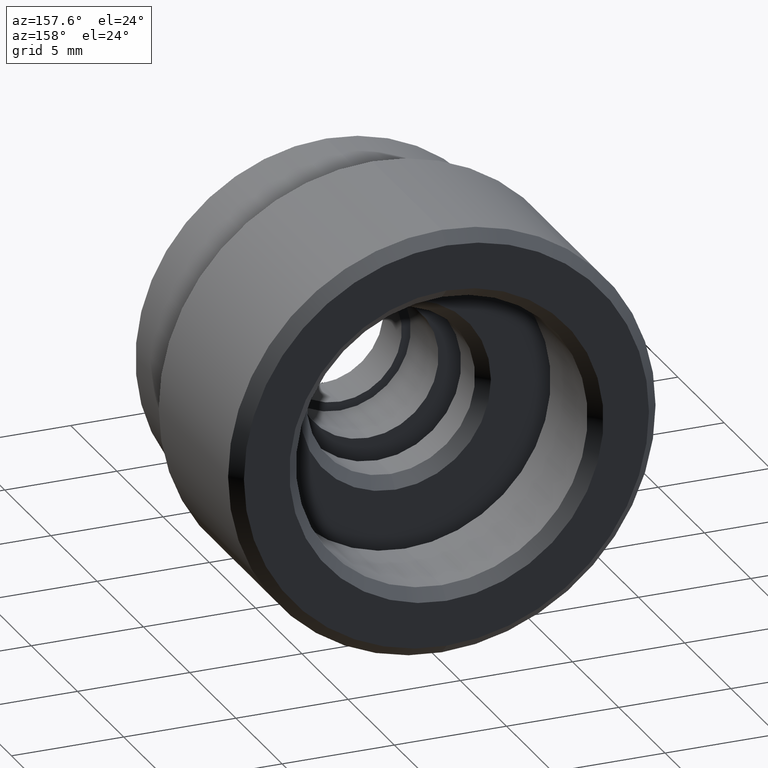
[diagram: clean part render]
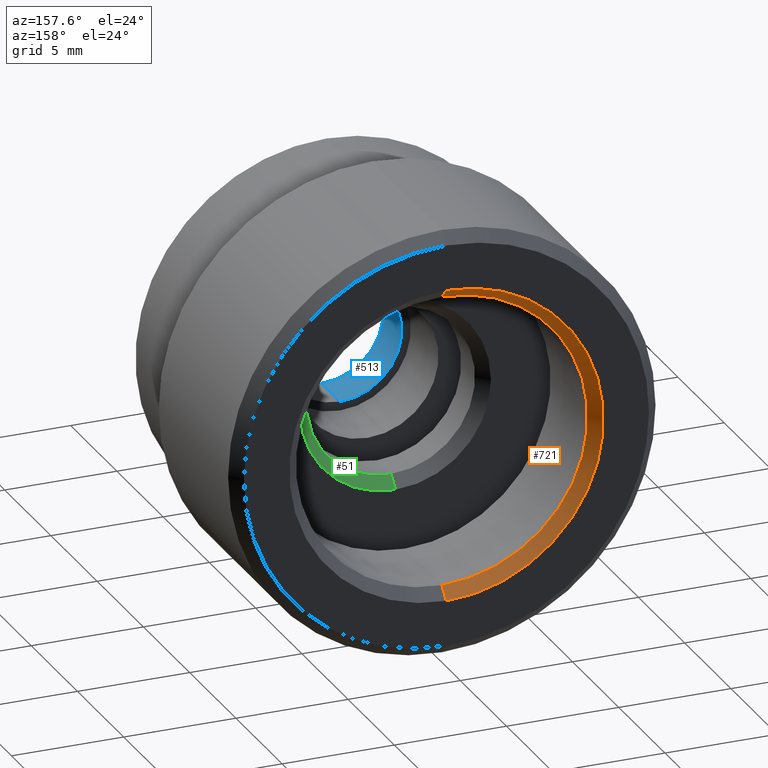
[diagram: same view with three faces highlighted in distinct colors, each labeled with its STEP entity id]
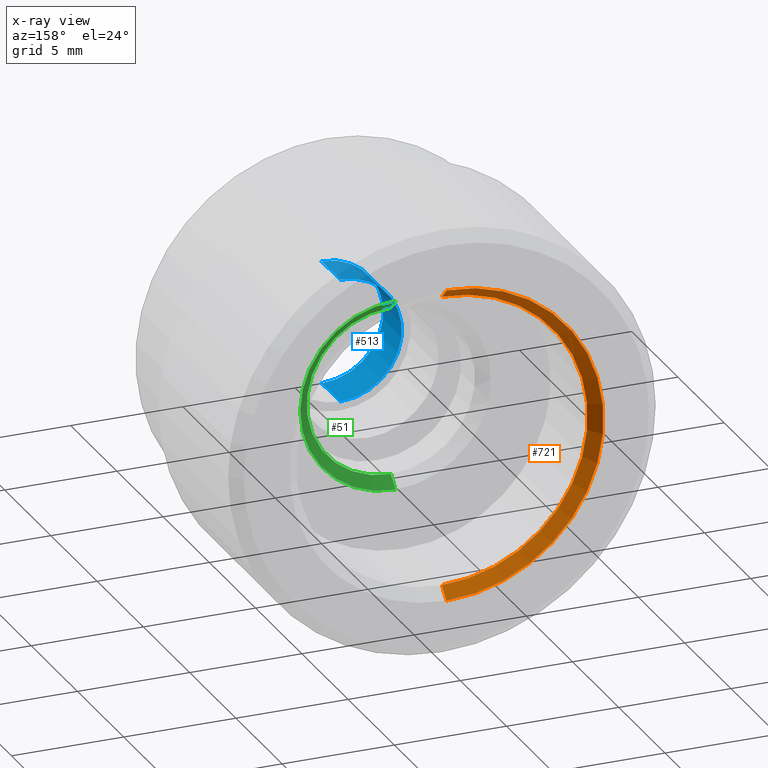
[diagram: x-ray of the same camera — body ghosted, the three highlighted faces saturated]
A machine part, auxiliary view with three faces highlighted in distinct colors.
The next image is the same camera in x-ray (body ghosted, the three faces saturated) — at least one of them is partly hidden behind the body in this view.
Their STEP definitions:

[orange] entity #721 — the highlighted conical surface has half-angle 45 deg.
#17 = ORIENTED_EDGE ( 'NONE', *, *, #1092, .F. ) ;
#66 = CONICAL_SURFACE ( 'NONE', #284, 6.999999999999997300, 0.7853981633974439500 ) ;
#74 = EDGE_CURVE ( 'NONE', #341, #809, #636, .T. ) ;
#91 = DIRECTION ( 'NONE',  ( 0.0000000000000000000, 0.7071067811865505700, 0.7071067811865444600 ) ) ;
#108 = EDGE_CURVE ( 'NONE', #1040, #809, #465, .T. ) ;
#148 = CARTESIAN_POINT ( 'NONE',  ( 0.0000000000000000000, 12.99999999999999800, -6.500000000000000000 ) ) ;
#161 = CARTESIAN_POINT ( 'NONE',  ( 8.572527594031470200E-016, 13.50000000000000000, -6.999999999999997300 ) ) ;
#183 = CARTESIAN_POINT ( 'NONE',  ( 8.572527594031470200E-016, 13.50000000000000000, -6.999999999999997300 ) ) ;
#214 = CARTESIAN_POINT ( 'NONE',  ( 0.0000000000000000000, 13.50000000000000000, 0.0000000000000000000 ) ) ;
#221 = DIRECTION ( 'NONE',  ( -0.0000000000000000000, -1.000000000000000000, -0.0000000000000000000 ) ) ;
#277 = DIRECTION ( 'NONE',  ( 0.0000000000000000000, 0.0000000000000000000, 1.000000000000000000 ) ) ;
#284 = AXIS2_PLACEMENT_3D ( 'NONE', #827, #387, #898 ) ;
#290 = DIRECTION ( 'NONE',  ( -0.0000000000000000000, 1.000000000000000000, -0.0000000000000000000 ) ) ;
#316 = DIRECTION ( 'NONE',  ( 8.659560562354895900E-017, 0.7071067811865505700, -0.7071067811865444600 ) ) ;
#341 = VERTEX_POINT ( 'NONE', #670 ) ;
#348 = VECTOR ( 'NONE', #91, 1000.000000000000000 ) ;
#354 = AXIS2_PLACEMENT_3D ( 'NONE', #214, #221, #277 ) ;
#356 = ORIENTED_EDGE ( 'NONE', *, *, #74, .F. ) ;
#362 = CARTESIAN_POINT ( 'NONE',  ( 0.0000000000000000000, 12.99999999999999800, 0.0000000000000000000 ) ) ;
#371 = ORIENTED_EDGE ( 'NONE', *, *, #108, .T. ) ;
#387 = DIRECTION ( 'NONE',  ( -0.0000000000000000000, 1.000000000000000000, -0.0000000000000000000 ) ) ;
#436 = EDGE_LOOP ( 'NONE', ( #646, #371, #356, #17 ) ) ;
#440 = LINE ( 'NONE', #686, #348 ) ;
#465 = LINE ( 'NONE', #183, #931 ) ;
#621 = VERTEX_POINT ( 'NONE', #1019 ) ;
#636 = CIRCLE ( 'NONE', #354, 6.999999999999997300 ) ;
#646 = ORIENTED_EDGE ( 'NONE', *, *, #814, .F. ) ;
#670 = CARTESIAN_POINT ( 'NONE',  ( 0.0000000000000000000, 13.50000000000000000, 6.999999999999997300 ) ) ;
#686 = CARTESIAN_POINT ( 'NONE',  ( 0.0000000000000000000, 13.50000000000000000, 6.999999999999997300 ) ) ;
#721 = ADVANCED_FACE ( 'NONE', ( #1065 ), #66, .F. ) ;
#809 = VERTEX_POINT ( 'NONE', #161 ) ;
#814 = EDGE_CURVE ( 'NONE', #1040, #621, #909, .T. ) ;
#827 = CARTESIAN_POINT ( 'NONE',  ( 0.0000000000000000000, 13.50000000000000000, 0.0000000000000000000 ) ) ;
#863 = DIRECTION ( 'NONE',  ( 0.0000000000000000000, 0.0000000000000000000, 1.000000000000000000 ) ) ;
#892 = AXIS2_PLACEMENT_3D ( 'NONE', #362, #290, #863 ) ;
#898 = DIRECTION ( 'NONE',  ( 0.0000000000000000000, 0.0000000000000000000, 1.000000000000000000 ) ) ;
#909 = CIRCLE ( 'NONE', #892, 6.500000000000000000 ) ;
#931 = VECTOR ( 'NONE', #316, 1000.000000000000000 ) ;
#1019 = CARTESIAN_POINT ( 'NONE',  ( 7.960204194457795500E-016, 12.99999999999999800, 6.500000000000000000 ) ) ;
#1040 = VERTEX_POINT ( 'NONE', #148 ) ;
#1065 = FACE_OUTER_BOUND ( 'NONE', #436, .T. ) ;
#1092 = EDGE_CURVE ( 'NONE', #621, #341, #440, .T. ) ;

[blue] entity #513 — the highlighted cylindrical surface (partial cylindrical patch) has radius 2.75 mm, axis along (-0, -1, -0).
#39 = ORIENTED_EDGE ( 'NONE', *, *, #840, .F. ) ;
#83 = CIRCLE ( 'NONE', #720, 2.750000000000000000 ) ;
#119 = CARTESIAN_POINT ( 'NONE',  ( 3.367778697655221000E-016, 0.0000000000000000000, 2.750000000000000000 ) ) ;
#124 = VERTEX_POINT ( 'NONE', #141 ) ;
#141 = CARTESIAN_POINT ( 'NONE',  ( 3.367778697655221000E-016, 0.0000000000000000000, 2.750000000000000000 ) ) ;
#196 = EDGE_LOOP ( 'NONE', ( #39, #382, #300, #630 ) ) ;
#244 = AXIS2_PLACEMENT_3D ( 'NONE', #997, #745, #786 ) ;
#268 = LINE ( 'NONE', #119, #542 ) ;
#280 = VERTEX_POINT ( 'NONE', #861 ) ;
#289 = EDGE_CURVE ( 'NONE', #1087, #124, #268, .T. ) ;
#300 = ORIENTED_EDGE ( 'NONE', *, *, #396, .T. ) ;
#314 = VECTOR ( 'NONE', #848, 1000.000000000000000 ) ;
#375 = LINE ( 'NONE', #693, #314 ) ;
#382 = ORIENTED_EDGE ( 'NONE', *, *, #289, .T. ) ;
#394 = CYLINDRICAL_SURFACE ( 'NONE', #244, 2.750000000000000000 ) ;
#396 = EDGE_CURVE ( 'NONE', #124, #1096, #83, .T. ) ;
#495 = FACE_OUTER_BOUND ( 'NONE', #196, .T. ) ;
#513 = ADVANCED_FACE ( 'NONE', ( #495 ), #394, .F. ) ;
#542 = VECTOR ( 'NONE', #748, 1000.000000000000000 ) ;
#630 = ORIENTED_EDGE ( 'NONE', *, *, #1073, .F. ) ;
#693 = CARTESIAN_POINT ( 'NONE',  ( 0.0000000000000000000, 0.0000000000000000000, -2.750000000000000000 ) ) ;
#711 = DIRECTION ( 'NONE',  ( 0.0000000000000000000, 0.0000000000000000000, -1.000000000000000000 ) ) ;
#720 = AXIS2_PLACEMENT_3D ( 'NONE', #816, #845, #897 ) ;
#745 = DIRECTION ( 'NONE',  ( -0.0000000000000000000, -1.000000000000000000, -0.0000000000000000000 ) ) ;
#748 = DIRECTION ( 'NONE',  ( -0.0000000000000000000, -1.000000000000000000, -0.0000000000000000000 ) ) ;
#786 = DIRECTION ( 'NONE',  ( 0.0000000000000000000, 0.0000000000000000000, -1.000000000000000000 ) ) ;
#816 = CARTESIAN_POINT ( 'NONE',  ( 0.0000000000000000000, 0.0000000000000000000, 0.0000000000000000000 ) ) ;
#834 = AXIS2_PLACEMENT_3D ( 'NONE', #1041, #850, #711 ) ;
#840 = EDGE_CURVE ( 'NONE', #1087, #280, #1090, .T. ) ;
#845 = DIRECTION ( 'NONE',  ( -0.0000000000000000000, -1.000000000000000000, -0.0000000000000000000 ) ) ;
#848 = DIRECTION ( 'NONE',  ( -0.0000000000000000000, -1.000000000000000000, -0.0000000000000000000 ) ) ;
#850 = DIRECTION ( 'NONE',  ( -0.0000000000000000000, -1.000000000000000000, -0.0000000000000000000 ) ) ;
#861 = CARTESIAN_POINT ( 'NONE',  ( 0.0000000000000000000, 2.000000000000000000, -2.750000000000000000 ) ) ;
#897 = DIRECTION ( 'NONE',  ( 0.0000000000000000000, 0.0000000000000000000, -1.000000000000000000 ) ) ;
#982 = CARTESIAN_POINT ( 'NONE',  ( 0.0000000000000000000, 0.0000000000000000000, -2.750000000000000000 ) ) ;
#997 = CARTESIAN_POINT ( 'NONE',  ( 0.0000000000000000000, 0.0000000000000000000, 0.0000000000000000000 ) ) ;
#1032 = CARTESIAN_POINT ( 'NONE',  ( 3.367778697655221000E-016, 2.000000000000000000, 2.750000000000000000 ) ) ;
#1041 = CARTESIAN_POINT ( 'NONE',  ( 0.0000000000000000000, 2.000000000000000000, 0.0000000000000000000 ) ) ;
#1073 = EDGE_CURVE ( 'NONE', #280, #1096, #375, .T. ) ;
#1087 = VERTEX_POINT ( 'NONE', #1032 ) ;
#1090 = CIRCLE ( 'NONE', #834, 2.750000000000000000 ) ;
#1096 = VERTEX_POINT ( 'NONE', #982 ) ;

[green] entity #51 — the highlighted conical surface has half-angle 45 deg.
#4 = AXIS2_PLACEMENT_3D ( 'NONE', #122, #30, #1078 ) ;
#20 = ORIENTED_EDGE ( 'NONE', *, *, #478, .F. ) ;
#30 = DIRECTION ( 'NONE',  ( -0.0000000000000000000, 1.000000000000000000, -0.0000000000000000000 ) ) ;
#33 = VECTOR ( 'NONE', #467, 999.9999999999998900 ) ;
#51 = ADVANCED_FACE ( 'NONE', ( #361 ), #968, .F. ) ;
#56 = ORIENTED_EDGE ( 'NONE', *, *, #770, .F. ) ;
#85 = VERTEX_POINT ( 'NONE', #212 ) ;
#95 = CARTESIAN_POINT ( 'NONE',  ( 4.592425496802574000E-016, 7.500000000000002700, 3.750000000000000000 ) ) ;
#122 = CARTESIAN_POINT ( 'NONE',  ( 0.0000000000000000000, 7.500000000000002700, 0.0000000000000000000 ) ) ;
#147 = VERTEX_POINT ( 'NONE', #466 ) ;
#199 = CARTESIAN_POINT ( 'NONE',  ( 0.0000000000000000000, 8.000000000000000000, 0.0000000000000000000 ) ) ;
#212 = CARTESIAN_POINT ( 'NONE',  ( 0.0000000000000000000, 8.000000000000000000, 4.249999999999996400 ) ) ;
#227 = LINE ( 'NONE', #993, #1057 ) ;
#253 = ORIENTED_EDGE ( 'NONE', *, *, #996, .T. ) ;
#270 = DIRECTION ( 'NONE',  ( -0.0000000000000000000, 1.000000000000000000, -0.0000000000000000000 ) ) ;
#272 = AXIS2_PLACEMENT_3D ( 'NONE', #199, #270, #1080 ) ;
#305 = CARTESIAN_POINT ( 'NONE',  ( 0.0000000000000000000, 8.000000000000000000, 0.0000000000000000000 ) ) ;
#320 = CIRCLE ( 'NONE', #439, 4.249999999999996400 ) ;
#327 = CIRCLE ( 'NONE', #4, 3.750000000000000000 ) ;
#361 = FACE_OUTER_BOUND ( 'NONE', #946, .T. ) ;
#439 = AXIS2_PLACEMENT_3D ( 'NONE', #305, #501, #517 ) ;
#452 = LINE ( 'NONE', #1022, #33 ) ;
#460 = VERTEX_POINT ( 'NONE', #95 ) ;
#466 = CARTESIAN_POINT ( 'NONE',  ( 0.0000000000000000000, 7.500000000000002700, -3.750000000000000000 ) ) ;
#467 = DIRECTION ( 'NONE',  ( 0.0000000000000000000, 0.7071067811865482400, 0.7071067811865469100 ) ) ;
#478 = EDGE_CURVE ( 'NONE', #1109, #85, #320, .T. ) ;
#501 = DIRECTION ( 'NONE',  ( -0.0000000000000000000, -1.000000000000000000, -0.0000000000000000000 ) ) ;
#517 = DIRECTION ( 'NONE',  ( 0.0000000000000000000, 0.0000000000000000000, 1.000000000000000000 ) ) ;
#690 = CARTESIAN_POINT ( 'NONE',  ( 5.204748896376247700E-016, 8.000000000000000000, -4.249999999999996400 ) ) ;
#705 = EDGE_CURVE ( 'NONE', #460, #147, #327, .T. ) ;
#770 = EDGE_CURVE ( 'NONE', #147, #1109, #227, .T. ) ;
#946 = EDGE_LOOP ( 'NONE', ( #56, #1067, #253, #20 ) ) ;
#968 = CONICAL_SURFACE ( 'NONE', #272, 4.249999999999996400, 0.7853981633974473900 ) ;
#993 = CARTESIAN_POINT ( 'NONE',  ( 5.204748896376247700E-016, 8.000000000000000000, -4.249999999999996400 ) ) ;
#996 = EDGE_CURVE ( 'NONE', #460, #85, #452, .T. ) ;
#1022 = CARTESIAN_POINT ( 'NONE',  ( 0.0000000000000000000, 8.000000000000000000, 4.249999999999996400 ) ) ;
#1057 = VECTOR ( 'NONE', #1114, 999.9999999999998900 ) ;
#1067 = ORIENTED_EDGE ( 'NONE', *, *, #705, .F. ) ;
#1078 = DIRECTION ( 'NONE',  ( 0.0000000000000000000, 0.0000000000000000000, 1.000000000000000000 ) ) ;
#1080 = DIRECTION ( 'NONE',  ( 0.0000000000000000000, 0.0000000000000000000, 1.000000000000000000 ) ) ;
#1109 = VERTEX_POINT ( 'NONE', #690 ) ;
#1114 = DIRECTION ( 'NONE',  ( 8.659560562354926700E-017, 0.7071067811865482400, -0.7071067811865469100 ) ) ;